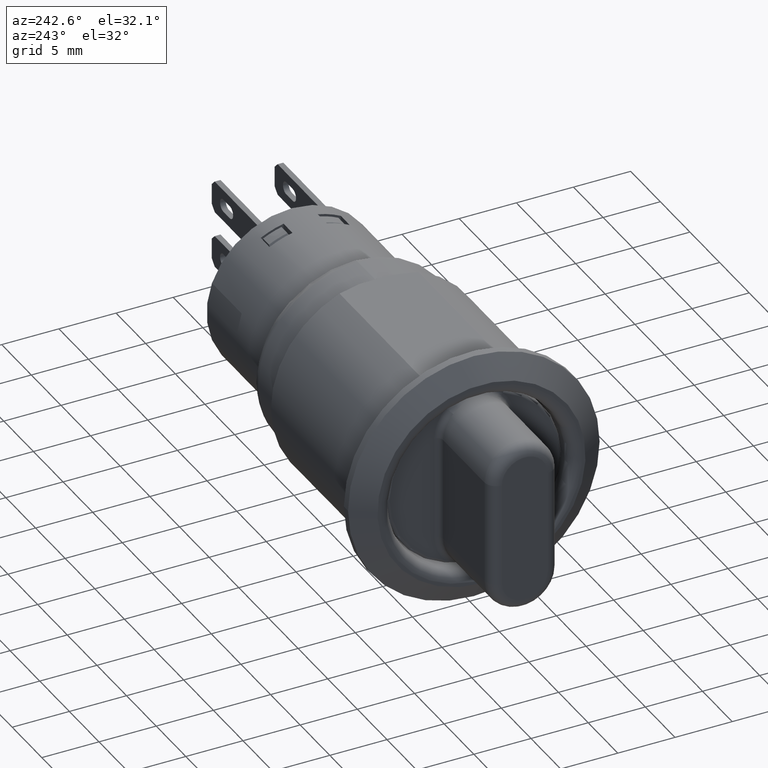
[diagram: clean part render]
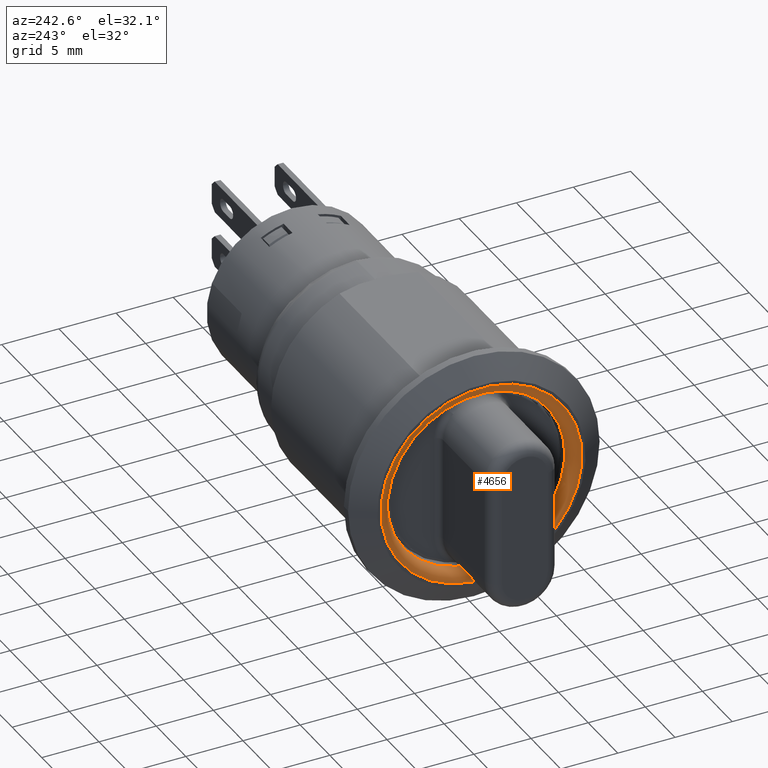
[diagram: same view with one face highlighted and labeled with its STEP entity id]
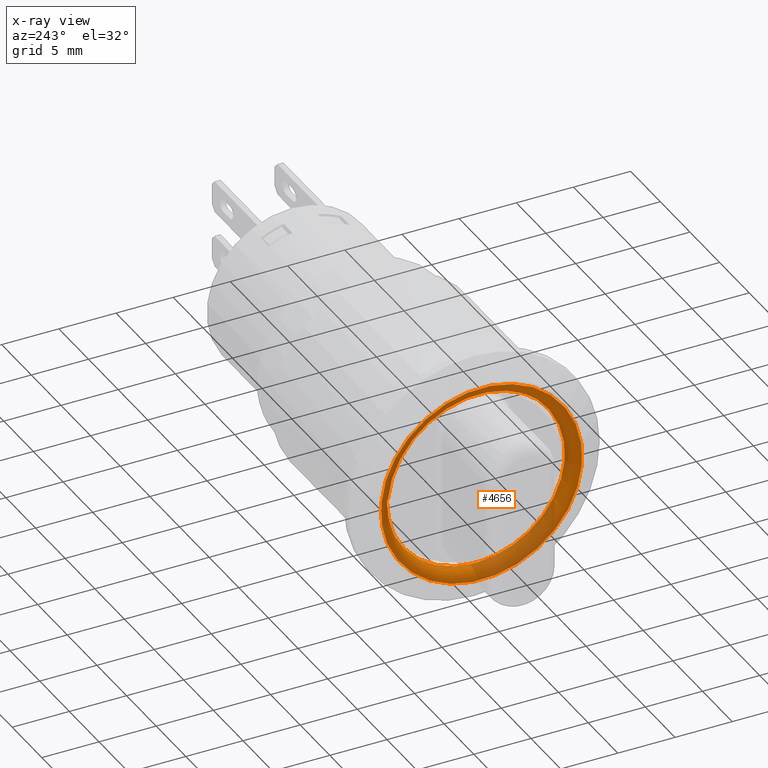
[diagram: x-ray of the same camera — body ghosted, the highlighted face saturated]
A machine part, auxiliary view. The second image highlights one B-rep face of the part: STEP entity #4656.
The next image is the same camera in x-ray: the body ghosted, the highlighted face saturated — about 26% of this face is hidden behind the body in this view.
In plain terms, the highlighted toroidal blend (fillet) surface has major radius 8.8 mm and minor (blend) radius 1 mm.
Its self-contained STEP definition (entity closure, byte-faithful):
#180=CIRCLE('',#4974,0.307086614173228);
#181=CIRCLE('',#4975,0.307086614173228);
#182=CIRCLE('',#4976,0.0393700787401575);
#183=CIRCLE('',#4977,0.346456692913386);
#375=TOROIDAL_SURFACE('',#4973,0.346456692913386,0.0393700787401575);
#407=FACE_OUTER_BOUND('',#669,.T.);
#669=EDGE_LOOP('',(#3180,#3181,#3182,#3183,#3184));
#1916=VERTEX_POINT('',#6843);
#1917=VERTEX_POINT('',#6844);
#1918=VERTEX_POINT('',#6847);
#2408=EDGE_CURVE('',#1916,#1917,#180,.T.);
#2409=EDGE_CURVE('',#1917,#1916,#181,.T.);
#2410=EDGE_CURVE('',#1916,#1918,#182,.T.);
#2411=EDGE_CURVE('',#1918,#1918,#183,.T.);
#3180=ORIENTED_EDGE('',*,*,#2408,.T.);
#3181=ORIENTED_EDGE('',*,*,#2409,.T.);
#3182=ORIENTED_EDGE('',*,*,#2410,.T.);
#3183=ORIENTED_EDGE('',*,*,#2411,.T.);
#3184=ORIENTED_EDGE('',*,*,#2410,.F.);
#4656=ADVANCED_FACE('',(#407),#375,.T.);
#4973=AXIS2_PLACEMENT_3D('',#6842,#5467,#5468);
#4974=AXIS2_PLACEMENT_3D('',#6845,#5469,#5470);
#4975=AXIS2_PLACEMENT_3D('',#6846,#5471,#5472);
#4976=AXIS2_PLACEMENT_3D('',#6848,#5473,#5474);
#4977=AXIS2_PLACEMENT_3D('',#6849,#5475,#5476);
#5467=DIRECTION('center_axis',(-1.,0.,0.));
#5468=DIRECTION('ref_axis',(0.,0.935464153635235,-0.353421585735101));
#5469=DIRECTION('center_axis',(1.,0.,0.));
#5470=DIRECTION('ref_axis',(0.,0.935464153635235,-0.353421585735101));
#5471=DIRECTION('center_axis',(1.,0.,0.));
#5472=DIRECTION('ref_axis',(0.,0.935464153635235,-0.353421585735101));
#5473=DIRECTION('center_axis',(0.,0.3534215857351,0.935464153635235));
#5474=DIRECTION('ref_axis',(0.,-0.935464153635235,0.3534215857351));
#5475=DIRECTION('center_axis',(-1.,0.,0.));
#5476=DIRECTION('ref_axis',(0.,0.935464153635235,-0.353421585735101));
#6842=CARTESIAN_POINT('Origin',(-0.0393700787401575,0.,0.));
#6843=CARTESIAN_POINT('',(-0.0393700787401575,-0.287268519620269,0.108531038139125));
#6844=CARTESIAN_POINT('',(-0.0393700787401575,-3.76072639108242E-17,-0.307086614173228));
#6845=CARTESIAN_POINT('Origin',(-0.0393700787401575,0.,0.));
#6846=CARTESIAN_POINT('Origin',(-0.0393700787401575,0.,0.));
#6847=CARTESIAN_POINT('',(-0.078740157480315,-0.324097817007483,0.122445273797988));
#6848=CARTESIAN_POINT('Origin',(-0.0393700787401575,-0.324097817007483,
0.122445273797988));
#6849=CARTESIAN_POINT('Origin',(-0.078740157480315,0.,0.));